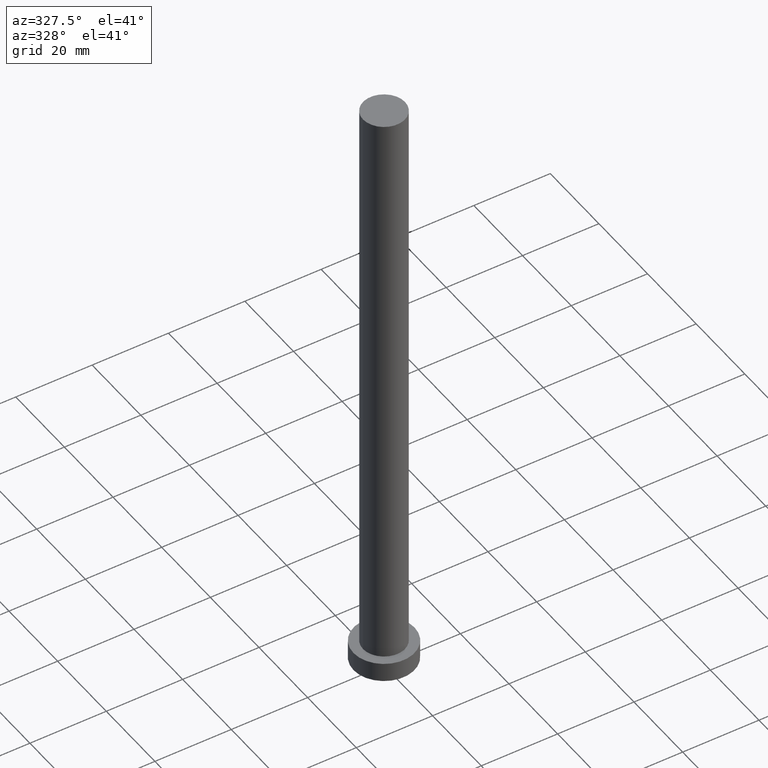
[diagram: clean part render]
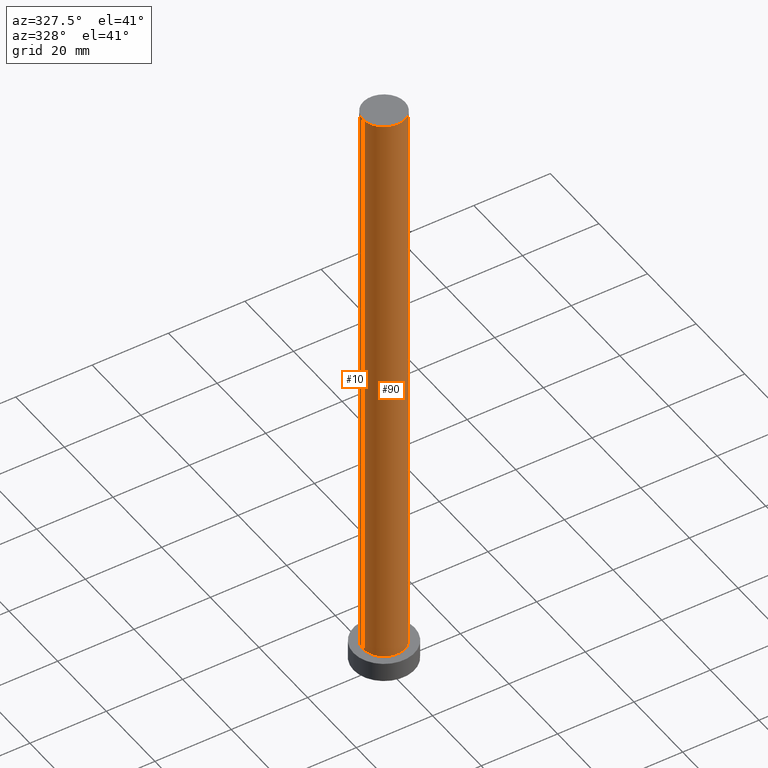
[diagram: same view with one multi-face feature highlighted, each face labeled with its STEP entity id]
A machine part, auxiliary view. The highlighted faces form ONE feature: a constant-radius fillet chain: 2 tangent blend faces with common blend radius 5.5 mm. The faces share edges in the B-rep.
Their STEP definitions:
[1] entity #10 (Cylinder):
#10 = ADVANCED_FACE ( 'NONE', ( #123 ), #98, .T. ) ;
#15 = ORIENTED_EDGE ( 'NONE', *, *, #50, .F. ) ;
#19 = LINE ( 'NONE', #195, #94 ) ;
#21 = ORIENTED_EDGE ( 'NONE', *, *, #239, .T. ) ;
#32 = AXIS2_PLACEMENT_3D ( 'NONE', #46, #127, #243 ) ;
#39 = DIRECTION ( 'NONE',  ( -0.000000000000000000, -0.000000000000000000, -1.000000000000000000 ) ) ;
#42 = CARTESIAN_POINT ( 'NONE',  ( -5.500000000000000000, 0.000000000000000000, 160.0000000000000000 ) ) ;
#44 = EDGE_CURVE ( 'NONE', #153, #234, #68, .T. ) ;
#46 = CARTESIAN_POINT ( 'NONE',  ( 0.000000000000000000, 0.000000000000000000, 160.0000000000000000 ) ) ;
#48 = VERTEX_POINT ( 'NONE', #206 ) ;
#49 = AXIS2_PLACEMENT_3D ( 'NONE', #103, #39, #179 ) ;
#50 = EDGE_CURVE ( 'NONE', #234, #48, #241, .T. ) ;
#68 = CIRCLE ( 'NONE', #32, 5.500000000000000000 ) ;
#83 = AXIS2_PLACEMENT_3D ( 'NONE', #135, #141, #222 ) ;
#87 = ORIENTED_EDGE ( 'NONE', *, *, #149, .T. ) ;
#94 = VECTOR ( 'NONE', #174, 1000.000000000000000 ) ;
#98 = CYLINDRICAL_SURFACE ( 'NONE', #49, 5.500000000000000000 ) ;
#103 = CARTESIAN_POINT ( 'NONE',  ( 0.000000000000000000, 0.000000000000000000, 160.0000000000000000 ) ) ;
#123 = FACE_OUTER_BOUND ( 'NONE', #248, .T. ) ;
#127 = DIRECTION ( 'NONE',  ( 0.000000000000000000, 0.000000000000000000, 1.000000000000000000 ) ) ;
#135 = CARTESIAN_POINT ( 'NONE',  ( 0.000000000000000000, 0.000000000000000000, 5.000000000000000000 ) ) ;
#141 = DIRECTION ( 'NONE',  ( 0.000000000000000000, 0.000000000000000000, 1.000000000000000000 ) ) ;
#147 = ORIENTED_EDGE ( 'NONE', *, *, #44, .F. ) ;
#149 = EDGE_CURVE ( 'NONE', #153, #254, #19, .T. ) ;
#153 = VERTEX_POINT ( 'NONE', #157 ) ;
#157 = CARTESIAN_POINT ( 'NONE',  ( 5.500000000000000000, 6.735557395310442023E-16, 160.0000000000000000 ) ) ;
#174 = DIRECTION ( 'NONE',  ( -0.000000000000000000, -0.000000000000000000, -1.000000000000000000 ) ) ;
#179 = DIRECTION ( 'NONE',  ( -1.000000000000000000, 0.000000000000000000, 0.000000000000000000 ) ) ;
#180 = CARTESIAN_POINT ( 'NONE',  ( 5.500000000000000000, 6.735557395310442023E-16, 5.000000000000000000 ) ) ;
#195 = CARTESIAN_POINT ( 'NONE',  ( 5.500000000000000000, 6.735557395310442023E-16, 160.0000000000000000 ) ) ;
#202 = DIRECTION ( 'NONE',  ( -0.000000000000000000, -0.000000000000000000, -1.000000000000000000 ) ) ;
#206 = CARTESIAN_POINT ( 'NONE',  ( -5.500000000000000000, 0.000000000000000000, 5.000000000000000000 ) ) ;
#209 = VECTOR ( 'NONE', #202, 1000.000000000000000 ) ;
#214 = CIRCLE ( 'NONE', #83, 5.500000000000000000 ) ;
#222 = DIRECTION ( 'NONE',  ( 1.000000000000000000, 0.000000000000000000, 0.000000000000000000 ) ) ;
#233 = CARTESIAN_POINT ( 'NONE',  ( -5.500000000000000000, 0.000000000000000000, 160.0000000000000000 ) ) ;
#234 = VERTEX_POINT ( 'NONE', #233 ) ;
#239 = EDGE_CURVE ( 'NONE', #254, #48, #214, .T. ) ;
#241 = LINE ( 'NONE', #42, #209 ) ;
#243 = DIRECTION ( 'NONE',  ( 1.000000000000000000, 0.000000000000000000, 0.000000000000000000 ) ) ;
#248 = EDGE_LOOP ( 'NONE', ( #147, #87, #21, #15 ) ) ;
#254 = VERTEX_POINT ( 'NONE', #180 ) ;
[2] entity #90 (Cylinder):
#19 = LINE ( 'NONE', #195, #94 ) ;
#35 = DIRECTION ( 'NONE',  ( 1.000000000000000000, 0.000000000000000000, 0.000000000000000000 ) ) ;
#40 = CARTESIAN_POINT ( 'NONE',  ( 0.000000000000000000, 0.000000000000000000, 5.000000000000000000 ) ) ;
#42 = CARTESIAN_POINT ( 'NONE',  ( -5.500000000000000000, 0.000000000000000000, 160.0000000000000000 ) ) ;
#48 = VERTEX_POINT ( 'NONE', #206 ) ;
#50 = EDGE_CURVE ( 'NONE', #234, #48, #241, .T. ) ;
#52 = CARTESIAN_POINT ( 'NONE',  ( 0.000000000000000000, 0.000000000000000000, 160.0000000000000000 ) ) ;
#55 = CYLINDRICAL_SURFACE ( 'NONE', #64, 5.500000000000000000 ) ;
#62 = AXIS2_PLACEMENT_3D ( 'NONE', #40, #145, #77 ) ;
#64 = AXIS2_PLACEMENT_3D ( 'NONE', #52, #156, #253 ) ;
#65 = CIRCLE ( 'NONE', #196, 5.500000000000000000 ) ;
#77 = DIRECTION ( 'NONE',  ( 1.000000000000000000, 0.000000000000000000, 0.000000000000000000 ) ) ;
#90 = ADVANCED_FACE ( 'NONE', ( #252 ), #55, .T. ) ;
#94 = VECTOR ( 'NONE', #174, 1000.000000000000000 ) ;
#101 = ORIENTED_EDGE ( 'NONE', *, *, #50, .T. ) ;
#132 = CARTESIAN_POINT ( 'NONE',  ( 0.000000000000000000, 0.000000000000000000, 160.0000000000000000 ) ) ;
#144 = CIRCLE ( 'NONE', #62, 5.500000000000000000 ) ;
#145 = DIRECTION ( 'NONE',  ( 0.000000000000000000, 0.000000000000000000, 1.000000000000000000 ) ) ;
#149 = EDGE_CURVE ( 'NONE', #153, #254, #19, .T. ) ;
#153 = VERTEX_POINT ( 'NONE', #157 ) ;
#156 = DIRECTION ( 'NONE',  ( -0.000000000000000000, -0.000000000000000000, -1.000000000000000000 ) ) ;
#157 = CARTESIAN_POINT ( 'NONE',  ( 5.500000000000000000, 6.735557395310442023E-16, 160.0000000000000000 ) ) ;
#169 = ORIENTED_EDGE ( 'NONE', *, *, #176, .F. ) ;
#174 = DIRECTION ( 'NONE',  ( -0.000000000000000000, -0.000000000000000000, -1.000000000000000000 ) ) ;
#176 = EDGE_CURVE ( 'NONE', #234, #153, #65, .T. ) ;
#180 = CARTESIAN_POINT ( 'NONE',  ( 5.500000000000000000, 6.735557395310442023E-16, 5.000000000000000000 ) ) ;
#189 = ORIENTED_EDGE ( 'NONE', *, *, #149, .F. ) ;
#192 = EDGE_LOOP ( 'NONE', ( #189, #169, #101, #247 ) ) ;
#195 = CARTESIAN_POINT ( 'NONE',  ( 5.500000000000000000, 6.735557395310442023E-16, 160.0000000000000000 ) ) ;
#196 = AXIS2_PLACEMENT_3D ( 'NONE', #132, #213, #35 ) ;
#202 = DIRECTION ( 'NONE',  ( -0.000000000000000000, -0.000000000000000000, -1.000000000000000000 ) ) ;
#206 = CARTESIAN_POINT ( 'NONE',  ( -5.500000000000000000, 0.000000000000000000, 5.000000000000000000 ) ) ;
#209 = VECTOR ( 'NONE', #202, 1000.000000000000000 ) ;
#213 = DIRECTION ( 'NONE',  ( 0.000000000000000000, 0.000000000000000000, 1.000000000000000000 ) ) ;
#233 = CARTESIAN_POINT ( 'NONE',  ( -5.500000000000000000, 0.000000000000000000, 160.0000000000000000 ) ) ;
#234 = VERTEX_POINT ( 'NONE', #233 ) ;
#241 = LINE ( 'NONE', #42, #209 ) ;
#247 = ORIENTED_EDGE ( 'NONE', *, *, #249, .T. ) ;
#249 = EDGE_CURVE ( 'NONE', #48, #254, #144, .T. ) ;
#252 = FACE_OUTER_BOUND ( 'NONE', #192, .T. ) ;
#253 = DIRECTION ( 'NONE',  ( -1.000000000000000000, 0.000000000000000000, 0.000000000000000000 ) ) ;
#254 = VERTEX_POINT ( 'NONE', #180 ) ;